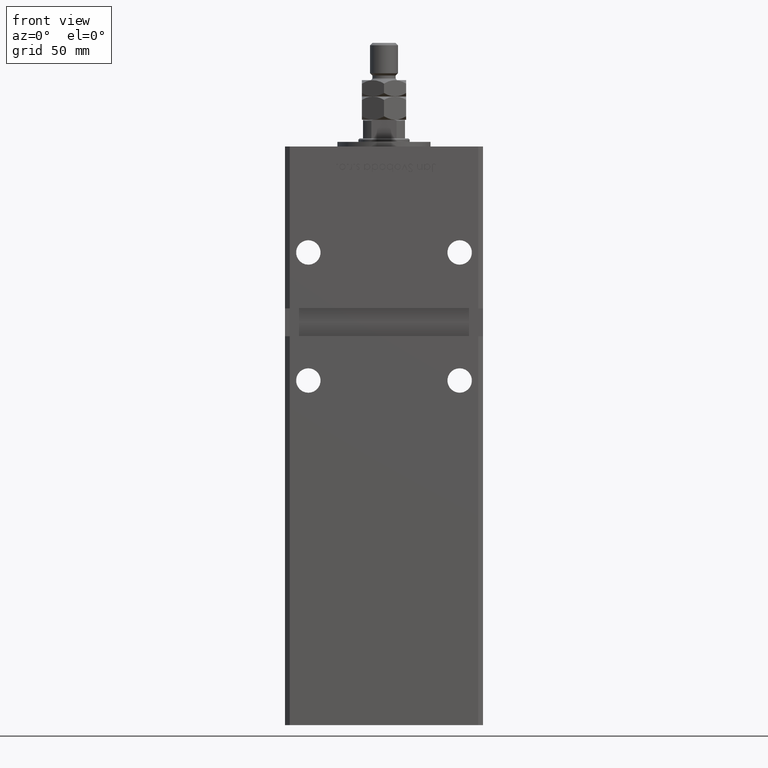
[diagram: clean part render]
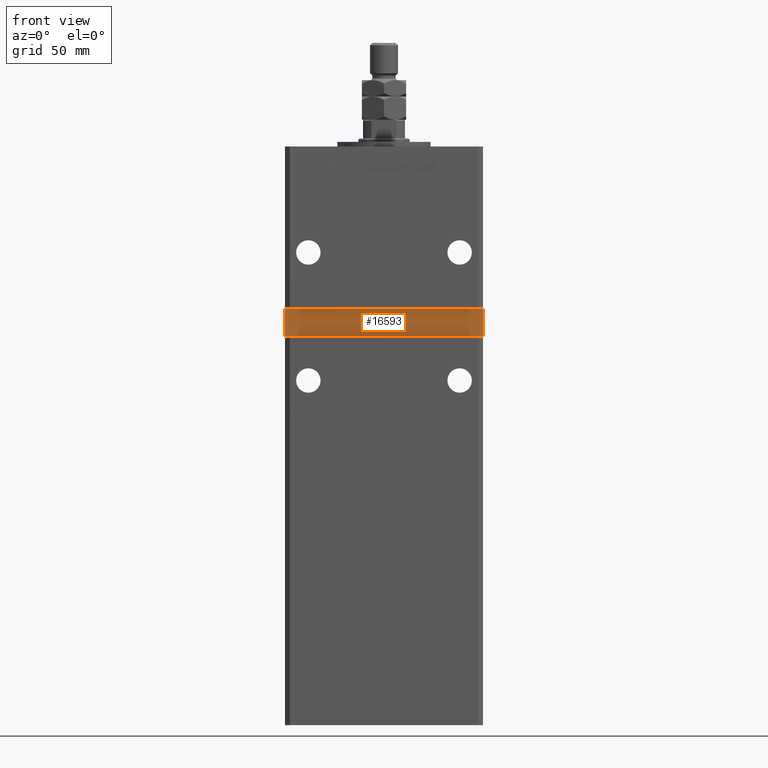
[diagram: same view with one face highlighted and labeled with its STEP entity id]
A machine part, front view. The second image highlights one B-rep face of the part: STEP entity #16593.
In plain terms, the highlighted planar face has unit normal (0, -1, 0).
Its self-contained STEP definition (entity closure, byte-faithful):
#438 = EDGE_CURVE ( 'NONE', #22026, #49395, #15000, .T. ) ;
#4060 = CARTESIAN_POINT ( 'NONE',  ( -42.49999999999998579, -32.50000000000000711, 152.0000000000000284 ) ) ;
#4724 = VECTOR ( 'NONE', #52075, 1000.000000000000000 ) ;
#5605 = CARTESIAN_POINT ( 'NONE',  ( -42.49999999999998579, -32.50000000000000711, 164.0000000000000284 ) ) ;
#9054 = ORIENTED_EDGE ( 'NONE', *, *, #37808, .T. ) ;
#10905 = CARTESIAN_POINT ( 'NONE',  ( 42.49999999999998579, -32.50000000000000711, 164.0000000000000284 ) ) ;
#11621 = DIRECTION ( 'NONE',  ( -0.000000000000000000, -0.000000000000000000, 1.000000000000000000 ) ) ;
#13700 = CARTESIAN_POINT ( 'NONE',  ( -42.49999999999998579, -32.50000000000000711, 164.0000000000000284 ) ) ;
#13912 = PLANE ( 'NONE',  #37791 ) ;
#15000 = LINE ( 'NONE', #5605, #4724 ) ;
#15765 = CARTESIAN_POINT ( 'NONE',  ( 42.49999999999998579, -32.50000000000000711, 164.0000000000000284 ) ) ;
#16593 = ADVANCED_FACE ( 'NONE', ( #34921 ), #13912, .T. ) ;
#18903 = VERTEX_POINT ( 'NONE', #46542 ) ;
#19700 = EDGE_CURVE ( 'NONE', #49395, #48777, #44645, .T. ) ;
#20387 = EDGE_LOOP ( 'NONE', ( #37581, #21811, #50348, #9054 ) ) ;
#21811 = ORIENTED_EDGE ( 'NONE', *, *, #438, .T. ) ;
#22026 = VERTEX_POINT ( 'NONE', #10905 ) ;
#30784 = CARTESIAN_POINT ( 'NONE',  ( 0.000000000000000000, -32.50000000000000711, 0.000000000000000000 ) ) ;
#33908 = DIRECTION ( 'NONE',  ( 1.000000000000000000, 0.000000000000000000, 0.000000000000000000 ) ) ;
#34412 = VECTOR ( 'NONE', #11621, 1000.000000000000000 ) ;
#34654 = DIRECTION ( 'NONE',  ( 0.000000000000000000, -1.000000000000000000, 0.000000000000000000 ) ) ;
#34921 = FACE_OUTER_BOUND ( 'NONE', #20387, .T. ) ;
#37581 = ORIENTED_EDGE ( 'NONE', *, *, #40043, .T. ) ;
#37791 = AXIS2_PLACEMENT_3D ( 'NONE', #30784, #34654, #54010 ) ;
#37808 = EDGE_CURVE ( 'NONE', #48777, #18903, #43040, .T. ) ;
#40043 = EDGE_CURVE ( 'NONE', #18903, #22026, #41474, .T. ) ;
#41420 = VECTOR ( 'NONE', #33908, 1000.000000000000000 ) ;
#41474 = LINE ( 'NONE', #15765, #34412 ) ;
#43040 = LINE ( 'NONE', #4060, #41420 ) ;
#44645 = LINE ( 'NONE', #49072, #46876 ) ;
#46542 = CARTESIAN_POINT ( 'NONE',  ( 42.49999999999998579, -32.50000000000000000, 152.0000000000000284 ) ) ;
#46876 = VECTOR ( 'NONE', #53486, 1000.000000000000000 ) ;
#48777 = VERTEX_POINT ( 'NONE', #54325 ) ;
#49072 = CARTESIAN_POINT ( 'NONE',  ( -42.49999999999998579, -32.50000000000000711, 164.0000000000000284 ) ) ;
#49395 = VERTEX_POINT ( 'NONE', #13700 ) ;
#50348 = ORIENTED_EDGE ( 'NONE', *, *, #19700, .T. ) ;
#52075 = DIRECTION ( 'NONE',  ( -1.000000000000000000, -0.000000000000000000, -0.000000000000000000 ) ) ;
#53486 = DIRECTION ( 'NONE',  ( -5.782411586589351722E-16, 0.000000000000000000, -1.000000000000000000 ) ) ;
#54010 = DIRECTION ( 'NONE',  ( 0.000000000000000000, -0.000000000000000000, -1.000000000000000000 ) ) ;
#54325 = CARTESIAN_POINT ( 'NONE',  ( -42.49999999999998579, -32.50000000000000711, 152.0000000000000284 ) ) ;